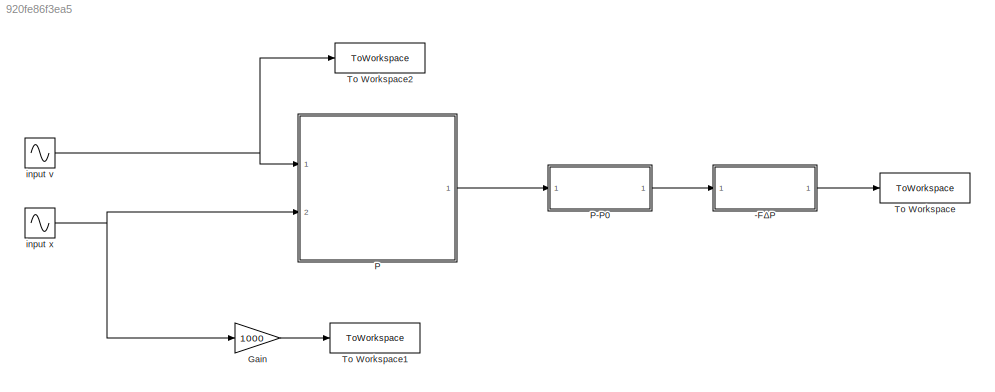
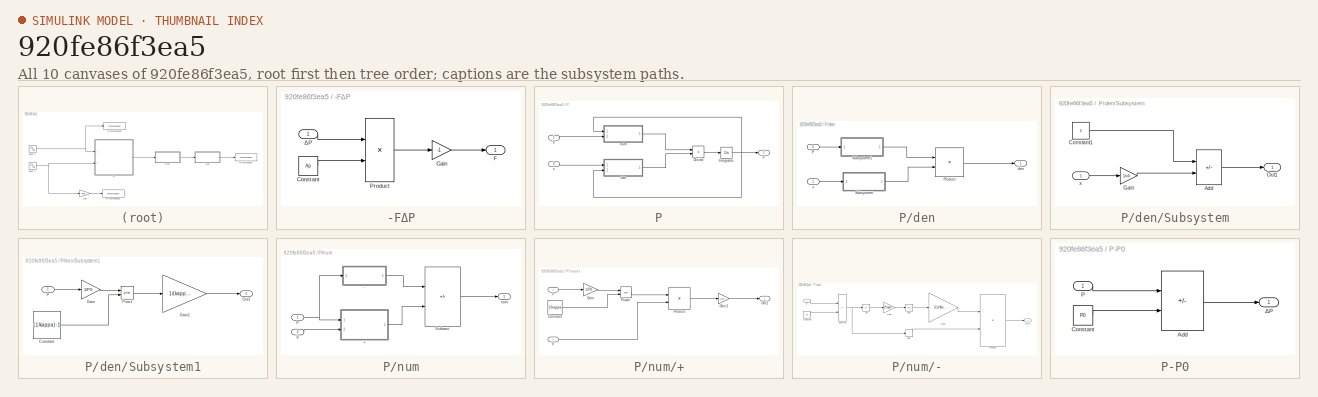
[diagram: thumbnail index - all 10 canvases of the model, root first then tree order]
MODEL slx_920fe86f3ea5
KIND model
CONFIG AbsTol = auto
CONFIG EnableMultiTasking = off
CONFIG FixedStep = 0.002
CONFIG MaxStep = auto
CONFIG MinStep = auto
CONFIG RelTol = 1e-3
CONFIG SampleTimeConstraint = Unconstrained
CONFIG Solver = ode4
CONFIG SolverName = ode4
CONFIG StartTime = 0.0
CONFIG StopTime = t_end
BLOCK [SubSystem] -FΔP
  Ports = [1, 1]
  RequestExecContextInheritance = off
BLOCK [Constant] -FΔP/Constant
  Value = Ap
BLOCK [Outport] -FΔP/F
BLOCK [Gain] -FΔP/Gain
  Gain = -1
BLOCK [Product] -FΔP/Product
  Ports = [2, 1]
BLOCK [Inport] -FΔP/ΔP
BLOCK [Gain] Gain
  Gain = 1000
BLOCK [SubSystem] P
  Ports = [2, 1]
  RequestExecContextInheritance = off
BLOCK [SubSystem] P-P0
  Ports = [1, 1]
  RequestExecContextInheritance = off
BLOCK [Sum] P-P0/Add
  IconShape = rectangular
  Inputs = +-
  Ports = [2, 1]
BLOCK [Constant] P-P0/Constant
  Value = P0
BLOCK [Inport] P-P0/P
BLOCK [Outport] P-P0/ΔP
BLOCK [Product] P/Divide
  Inputs = */
  Ports = [2, 1]
BLOCK [Integrator] P/Integrator
  InitialCondition = P0
  Ports = [1, 1]
BLOCK [Outport] P/P
BLOCK [Inport] P/V
BLOCK [SubSystem] P/den
  Ports = [2, 1]
  RequestExecContextInheritance = off
BLOCK [Inport] P/den/P
  Port = 2
BLOCK [Product] P/den/Product
  Ports = [2, 1]
BLOCK [SubSystem] P/den/Subsystem
  Ports = [1, 1]
  RequestExecContextInheritance = off
BLOCK [Sum] P/den/Subsystem/Add
  IconShape = rectangular
  Inputs = +-
  Ports = [2, 1]
BLOCK [Constant] P/den/Subsystem/Constant1
BLOCK [Gain] P/den/Subsystem/Gain
  Gain = 1/x0
BLOCK [Outport] P/den/Subsystem/Out1
BLOCK [Inport] P/den/Subsystem/x
BLOCK [SubSystem] P/den/Subsystem1
  Ports = [1, 1]
  RequestExecContextInheritance = off
BLOCK [Constant] P/den/Subsystem1/Constant
  Value = (1/kappa)-1
BLOCK [Gain] P/den/Subsystem1/Gain
  Gain = 1/P0
BLOCK [Gain] P/den/Subsystem1/Gain1
  Gain = 1/(kappa*P0)
BLOCK [Outport] P/den/Subsystem1/Out1
BLOCK [Inport] P/den/Subsystem1/P
BLOCK [Math] P/den/Subsystem1/Pow1
  Operator = pow
  OutputSignalType = real
  Ports = [2, 1]
  SignedPower = on
BLOCK [Outport] P/den/den
BLOCK [Inport] P/den/x
BLOCK [SubSystem] P/num
  Ports = [2, 1]
  RequestExecContextInheritance = off
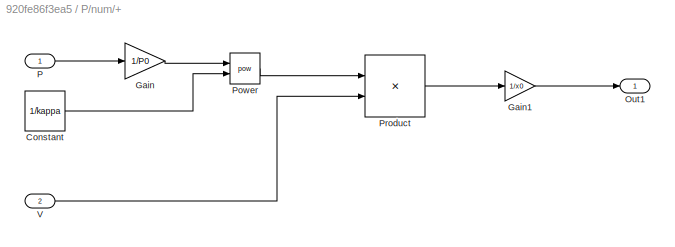
BLOCK [SubSystem] P/num/+
  Ports = [2, 1]
  RequestExecContextInheritance = off
BLOCK [Constant] P/num/+/Constant
  Value = 1/kappa
BLOCK [Gain] P/num/+/Gain
  Gain = 1/P0
BLOCK [Gain] P/num/+/Gain1
  Gain = 1/x0
BLOCK [Outport] P/num/+/Out1
BLOCK [Inport] P/num/+/P
BLOCK [Math] P/num/+/Power
  Operator = pow
  OutputSignalType = real
  Ports = [2, 1]
  SignedPower = on
BLOCK [Product] P/num/+/Product
  Ports = [2, 1]
BLOCK [Inport] P/num/+/V
  Port = 2
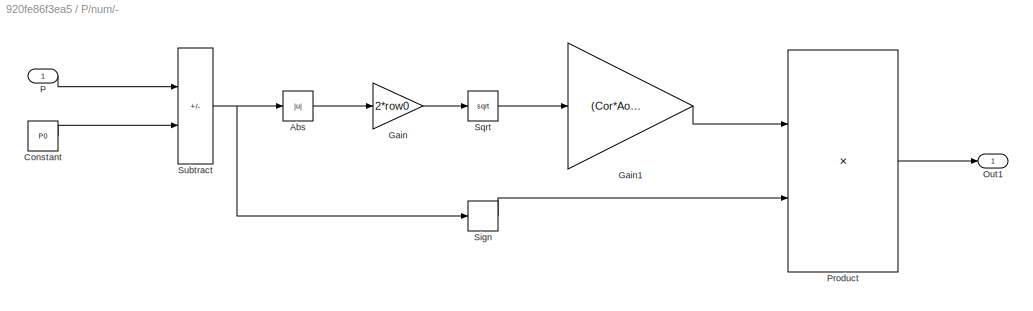
BLOCK [SubSystem] P/num/-
  Ports = [1, 1]
  RequestExecContextInheritance = off
BLOCK [Abs] P/num/-/Abs
  SaturateOnIntegerOverflow = off
BLOCK [Constant] P/num/-/Constant
  Value = P0
BLOCK [Gain] P/num/-/Gain
  Gain = 2*row0
BLOCK [Gain] P/num/-/Gain1
  Gain = (Cor*Aor)/(row0*Ap*x0)
BLOCK [Outport] P/num/-/Out1
BLOCK [Inport] P/num/-/P
BLOCK [Product] P/num/-/Product
  Ports = [2, 1]
BLOCK [Signum] P/num/-/Sign
BLOCK [Sqrt] P/num/-/Sqrt
BLOCK [Sum] P/num/-/Subtract
  IconShape = rectangular
  Inputs = +-
  Ports = [2, 1]
BLOCK [Inport] P/num/P
BLOCK [Sum] P/num/Subtract
  IconShape = rectangular
  Inputs = -+
  Ports = [2, 1]
BLOCK [Inport] P/num/V
  Port = 2
BLOCK [Outport] P/num/num
BLOCK [Inport] P/x
  Port = 2
BLOCK [ToWorkspace] To Workspace
  FixptAsFi = on
  MaxDataPoints = inf
  Ports = [1]
  SampleTime = -1
  SaveFormat = Timeseries
  VariableName = F
BLOCK [ToWorkspace] To Workspace1
  FixptAsFi = on
  MaxDataPoints = inf
  Ports = [1]
  SampleTime = -1
  SaveFormat = Timeseries
  VariableName = X
BLOCK [ToWorkspace] To Workspace2
  FixptAsFi = on
  MaxDataPoints = inf
  Ports = [1]
  SampleTime = -1
  SaveFormat = Timeseries
  VariableName = V
BLOCK [Sin] input v
  Amplitude = A*Hz
  Frequency = Hz
  Phase = phase_lag
  Ports = [0, 1]
  SampleTime = 0
BLOCK [Sin] input x
  Amplitude = A
  Frequency = Hz
  Ports = [0, 1]
  SampleTime = 0
LINE -FΔP/Constant:1 -> -FΔP/Product:2
LINE -FΔP/Gain:1 -> -FΔP/F:1
LINE -FΔP/Product:1 -> -FΔP/Gain:1
LINE -FΔP/ΔP:1 -> -FΔP/Product:1
LINE -FΔP:1 -> To Workspace:1
LINE Gain:1 -> To Workspace1:1
LINE P-P0/Add:1 -> P-P0/ΔP:1
LINE P-P0/Constant:1 -> P-P0/Add:2
LINE P-P0/P:1 -> P-P0/Add:1
LINE P-P0:1 -> -FΔP:1
LINE P/Divide:1 -> P/Integrator:1
NET P/Integrator:1 -> P/P:1, P/den:2, P/num:1
LINE P/V:1 -> P/num:2
LINE P/den/P:1 -> P/den/Subsystem1:1
LINE P/den/Product:1 -> P/den/den:1
LINE P/den/Subsystem/Add:1 -> P/den/Subsystem/Out1:1
LINE P/den/Subsystem/Constant1:1 -> P/den/Subsystem/Add:1
LINE P/den/Subsystem/Gain:1 -> P/den/Subsystem/Add:2
LINE P/den/Subsystem/x:1 -> P/den/Subsystem/Gain:1
LINE P/den/Subsystem1/Constant:1 -> P/den/Subsystem1/Pow1:2
LINE P/den/Subsystem1/Gain1:1 -> P/den/Subsystem1/Out1:1
LINE P/den/Subsystem1/Gain:1 -> P/den/Subsystem1/Pow1:1
LINE P/den/Subsystem1/P:1 -> P/den/Subsystem1/Gain:1
LINE P/den/Subsystem1/Pow1:1 -> P/den/Subsystem1/Gain1:1
LINE P/den/Subsystem1:1 -> P/den/Product:1
LINE P/den/Subsystem:1 -> P/den/Product:2
LINE P/den/x:1 -> P/den/Subsystem:1
LINE P/den:1 -> P/Divide:2
LINE P/num/+/Constant:1 -> P/num/+/Power:2
LINE P/num/+/Gain1:1 -> P/num/+/Out1:1
LINE P/num/+/Gain:1 -> P/num/+/Power:1
LINE P/num/+/P:1 -> P/num/+/Gain:1
LINE P/num/+/Power:1 -> P/num/+/Product:1
LINE P/num/+/Product:1 -> P/num/+/Gain1:1
LINE P/num/+/V:1 -> P/num/+/Product:2
LINE P/num/+:1 -> P/num/Subtract:2
LINE P/num/-/Abs:1 -> P/num/-/Gain:1
LINE P/num/-/Constant:1 -> P/num/-/Subtract:2
LINE P/num/-/Gain1:1 -> P/num/-/Product:1
LINE P/num/-/Gain:1 -> P/num/-/Sqrt:1
LINE P/num/-/P:1 -> P/num/-/Subtract:1
LINE P/num/-/Product:1 -> P/num/-/Out1:1
LINE P/num/-/Sign:1 -> P/num/-/Product:2
LINE P/num/-/Sqrt:1 -> P/num/-/Gain1:1
NET P/num/-/Subtract:1 -> P/num/-/Abs:1, P/num/-/Sign:1
LINE P/num/-:1 -> P/num/Subtract:1
NET P/num/P:1 -> P/num/+:1, P/num/-:1
LINE P/num/Subtract:1 -> P/num/num:1
LINE P/num/V:1 -> P/num/+:2
LINE P/num:1 -> P/Divide:1
LINE P/x:1 -> P/den:1
LINE P:1 -> P-P0:1
NET input v:1 -> P:1, To Workspace2:1
NET input x:1 -> Gain:1, P:2
note: NET lines group one-source signal fan-out (src -> all destinations, sorted); 1:1 wires keep LINE
